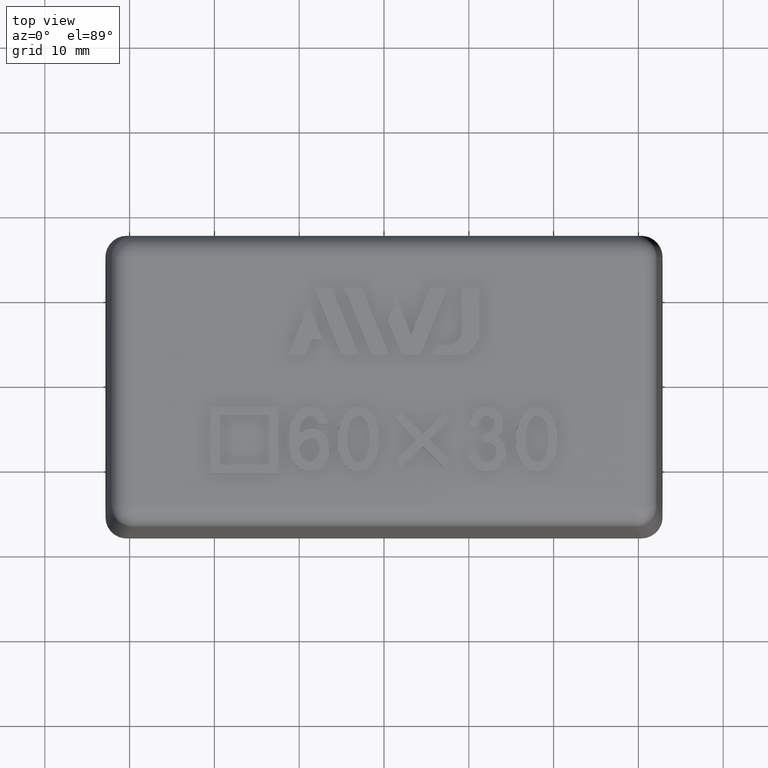
[diagram: clean part render]
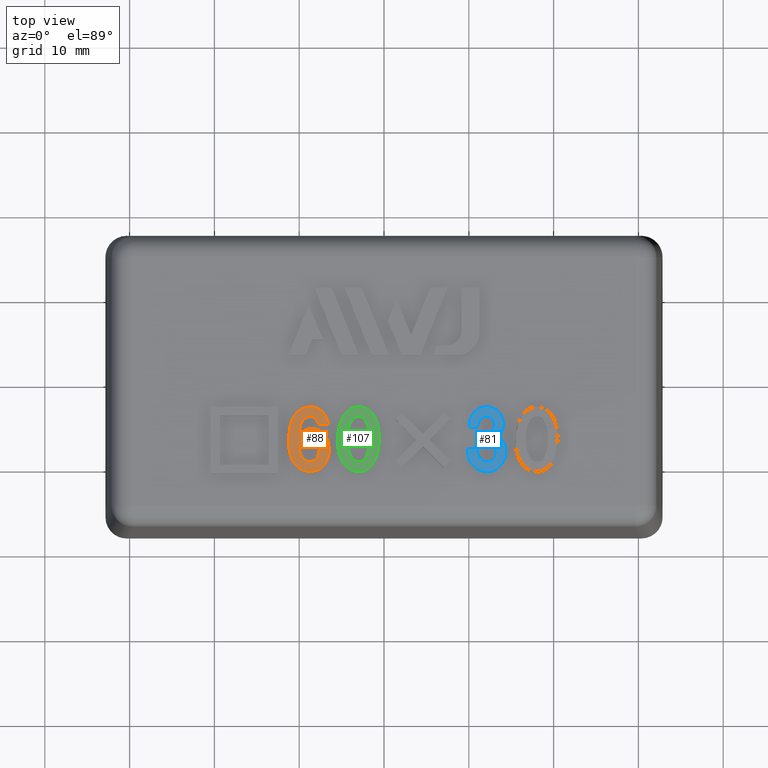
[diagram: same view with three faces highlighted in distinct colors, each labeled with its STEP entity id]
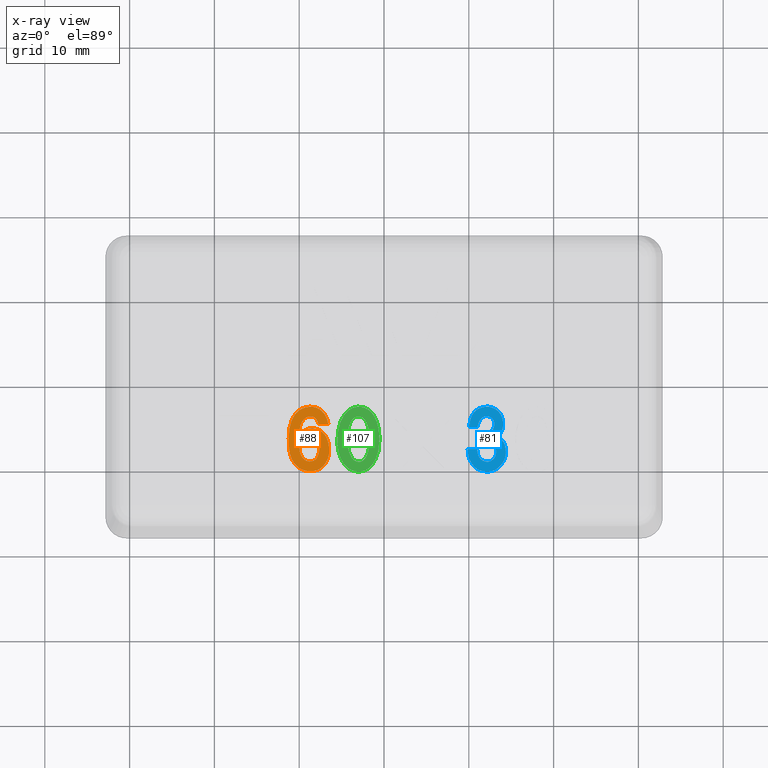
[diagram: x-ray of the same camera — body ghosted, the three highlighted faces saturated]
A machine part, top view with three faces highlighted in distinct colors.
The next image is the same camera in x-ray (body ghosted, the three faces saturated) — at least one of them is partly hidden behind the body in this view.
Their STEP definitions:

[orange] entity #88 — the highlighted planar face has unit normal (0, 0, 1).
#88 = ADVANCED_FACE( '', ( #225, #226 ), #227, .T. );
#225 = FACE_OUTER_BOUND( '', #466, .T. );
#226 = FACE_BOUND( '', #467, .T. );
#227 = PLANE( '', #468 );
#466 = EDGE_LOOP( '', ( #882, #883, #884, #885 ) );
#467 = EDGE_LOOP( '', ( #886, #887 ) );
#468 = AXIS2_PLACEMENT_3D( '', #888, #889, #890 );
#882 = ORIENTED_EDGE( '', *, *, #1717, .F. );
#883 = ORIENTED_EDGE( '', *, *, #1718, .F. );
#884 = ORIENTED_EDGE( '', *, *, #1719, .F. );
#885 = ORIENTED_EDGE( '', *, *, #1720, .F. );
#886 = ORIENTED_EDGE( '', *, *, #1721, .F. );
#887 = ORIENTED_EDGE( '', *, *, #1722, .F. );
#888 = CARTESIAN_POINT( '', ( -6.84205230928590, -4.22571289300513, 43.0000000000000 ) );
#889 = DIRECTION( '', ( 0.000000000000000, 0.000000000000000, 1.00000000000000 ) );
#890 = DIRECTION( '', ( 0.000000000000000, -1.00000000000000, 0.000000000000000 ) );
#1717 = EDGE_CURVE( '', #2052, #2053, #2054, .T. );
#1718 = EDGE_CURVE( '', #2055, #2052, #2056, .T. );
#1719 = EDGE_CURVE( '', #2057, #2055, #2058, .T. );
#1720 = EDGE_CURVE( '', #2053, #2057, #2059, .T. );
#1721 = EDGE_CURVE( '', #2060, #2061, #2062, .T. );
#1722 = EDGE_CURVE( '', #2061, #2060, #2063, .T. );
#2052 = VERTEX_POINT( '', #2805 );
#2053 = VERTEX_POINT( '', #2806 );
#2054 = B_SPLINE_CURVE_WITH_KNOTS( '', 2, ( #2807, #2808, #2809 ), .UNSPECIFIED., .F., .F., ( 3, 3 ), ( 0.000000000000000, 1.00000000000000 ), .UNSPECIFIED. );
#2055 = VERTEX_POINT( '', #2810 );
#2056 = B_SPLINE_CURVE_WITH_KNOTS( '', 2, ( #2811, #2812, #2813, #2814, #2815, #2816, #2817, #2818, #2819, #2820, #2821, #2822, #2823, #2824, #2825, #2826, #2827, #2828, #2829, #2830, #2831, #2832, #2833 ), .UNSPECIFIED., .F., .F., ( 3, 2, 2, 2, 2, 2, 2, 2, 2, 2, 2, 3 ), ( 5.00000000000000, 6.00000000000000, 7.00000000000000, 8.00000000000000, 9.00000000000000, 10.0000000000000, 11.0000000000000, 12.0000000000000, 13.0000000000000, 14.0000000000000, 15.0000000000000, 16.0000000000000 ), .UNSPECIFIED. );
#2057 = VERTEX_POINT( '', #2834 );
#2058 = B_SPLINE_CURVE_WITH_KNOTS( '', 2, ( #2835, #2836, #2837, #2838, #2839, #2840, #2841 ), .UNSPECIFIED., .F., .F., ( 3, 2, 2, 3 ), ( 2.00000000000000, 3.00000000000000, 4.00000000000000, 5.00000000000000 ), .UNSPECIFIED. );
#2059 = B_SPLINE_CURVE_WITH_KNOTS( '', 2, ( #2842, #2843, #2844 ), .UNSPECIFIED., .F., .F., ( 3, 3 ), ( 1.00000000000000, 2.00000000000000 ), .UNSPECIFIED. );
#2060 = VERTEX_POINT( '', #2845 );
#2061 = VERTEX_POINT( '', #2846 );
#2062 = B_SPLINE_CURVE_WITH_KNOTS( '', 2, ( #2847, #2848, #2849, #2850, #2851, #2852, #2853, #2854, #2855, #2856, #2857 ), .UNSPECIFIED., .F., .F., ( 3, 2, 2, 2, 2, 3 ), ( 0.000000000000000, 1.00000000000000, 2.00000000000000, 3.00000000000000, 4.00000000000000, 5.00000000000000 ), .UNSPECIFIED. );
#2063 = B_SPLINE_CURVE_WITH_KNOTS( '', 2, ( #2858, #2859, #2860 ), .UNSPECIFIED., .F., .F., ( 3, 3 ), ( 5.00000000000000, 6.00000000000000 ), .UNSPECIFIED. );
#2805 = CARTESIAN_POINT( '', ( -7.36508423714356, -3.53921520838412, 43.0000000000000 ) );
#2806 = CARTESIAN_POINT( '', ( -6.57073863636365, -5.10909090909092, 43.0000000000000 ) );
#2807 = CARTESIAN_POINT( '', ( -7.36508423714356, -3.53921520838412, 43.0000000000000 ) );
#2808 = CARTESIAN_POINT( '', ( -6.71619318181819, -4.12727272727274, 43.0000000000000 ) );
#2809 = CARTESIAN_POINT( '', ( -6.57073863636365, -5.10909090909092, 43.0000000000000 ) );
#2810 = CARTESIAN_POINT( '', ( -9.98892045454546, -6.27272727272728, 43.0000000000000 ) );
#2811 = CARTESIAN_POINT( '', ( -9.98892045454546, -6.27272727272728, 43.0000000000000 ) );
#2812 = CARTESIAN_POINT( '', ( -8.67982954545455, -5.14545454545456, 43.0000000000000 ) );
#2813 = CARTESIAN_POINT( '', ( -7.42137168214998, -5.96730457863306, 43.0000000000000 ) );
#2814 = CARTESIAN_POINT( '', ( -6.89801136363637, -6.30909090909092, 43.0000000000000 ) );
#2815 = CARTESIAN_POINT( '', ( -6.64156381118882, -7.03569230769232, 43.0000000000000 ) );
#2816 = CARTESIAN_POINT( '', ( -6.46164772727274, -7.54545454545456, 43.0000000000000 ) );
#2817 = CARTESIAN_POINT( '', ( -6.46164772727274, -8.23636363636365, 43.0000000000000 ) );
#2818 = CARTESIAN_POINT( '', ( -6.46164772727274, -9.07272727272728, 43.0000000000000 ) );
#2819 = CARTESIAN_POINT( '', ( -6.93508167810813, -9.76315178436223, 43.0000000000000 ) );
#2820 = CARTESIAN_POINT( '', ( -7.33437500000001, -10.3454545454546, 43.0000000000000 ) );
#2821 = CARTESIAN_POINT( '', ( -7.99052382573617, -10.5587029138188, 43.0000000000000 ) );
#2822 = CARTESIAN_POINT( '', ( -8.78892045454546, -10.8181818181818, 43.0000000000000 ) );
#2823 = CARTESIAN_POINT( '', ( -9.54754114420063, -10.5147335423198, 43.0000000000000 ) );
#2824 = CARTESIAN_POINT( '', ( -10.4252840909091, -10.1636363636364, 43.0000000000000 ) );
#2825 = CARTESIAN_POINT( '', ( -10.8610316120078, -9.25425023264770, 43.0000000000000 ) );
#2826 = CARTESIAN_POINT( '', ( -11.2616477272727, -8.41818181818183, 43.0000000000000 ) );
#2827 = CARTESIAN_POINT( '', ( -11.2434634510920, -6.85433406663636, 43.0000000000000 ) );
#2828 = CARTESIAN_POINT( '', ( -11.2252840909091, -5.29090909090910, 43.0000000000000 ) );
#2829 = CARTESIAN_POINT( '', ( -10.7720912563464, -4.42701025002396, 43.0000000000000 ) );
#2830 = CARTESIAN_POINT( '', ( -10.0616477272727, -3.07272727272728, 43.0000000000000 ) );
#2831 = CARTESIAN_POINT( '', ( -8.64346590909092, -3.07272727272728, 43.0000000000000 ) );
#2832 = CARTESIAN_POINT( '', ( -7.87982954545455, -3.07272727272728, 43.0000000000000 ) );
#2833 = CARTESIAN_POINT( '', ( -7.36508423714356, -3.53921520838412, 43.0000000000000 ) );
#2834 = CARTESIAN_POINT( '', ( -7.73437500000001, -5.10909090909092, 43.0000000000000 ) );
#2835 = CARTESIAN_POINT( '', ( -7.73437500000001, -5.10909090909092, 43.0000000000000 ) );
#2836 = CARTESIAN_POINT( '', ( -7.91619318181819, -4.20000000000001, 43.0000000000000 ) );
#2837 = CARTESIAN_POINT( '', ( -8.67982954545455, -4.20000000000001, 43.0000000000000 ) );
#2838 = CARTESIAN_POINT( '', ( -9.26164772727273, -4.20000000000001, 43.0000000000000 ) );
#2839 = CARTESIAN_POINT( '', ( -9.66081945928796, -4.81871618462362, 43.0000000000000 ) );
#2840 = CARTESIAN_POINT( '', ( -9.98892045454546, -5.32727272727274, 43.0000000000000 ) );
#2841 = CARTESIAN_POINT( '', ( -9.98892045454546, -6.27272727272728, 43.0000000000000 ) );
#2842 = CARTESIAN_POINT( '', ( -6.57073863636365, -5.10909090909092, 43.0000000000000 ) );
#2843 = CARTESIAN_POINT( '', ( -7.15255681818183, -5.10909090909092, 43.0000000000000 ) );
#2844 = CARTESIAN_POINT( '', ( -7.73437500000001, -5.10909090909092, 43.0000000000000 ) );
#2845 = CARTESIAN_POINT( '', ( -9.65476812039313, -8.99508599508600, 43.0000000000000 ) );
#2846 = CARTESIAN_POINT( '', ( -9.98892045454546, -7.83636363636365, 43.0000000000000 ) );
#2847 = CARTESIAN_POINT( '', ( -9.65476812039313, -8.99508599508600, 43.0000000000000 ) );
#2848 = CARTESIAN_POINT( '', ( -9.26164772727273, -9.54545454545456, 43.0000000000000 ) );
#2849 = CARTESIAN_POINT( '', ( -8.75297206362154, -9.53092095506452, 43.0000000000000 ) );
#2850 = CARTESIAN_POINT( '', ( -7.98892045454546, -9.50909090909092, 43.0000000000000 ) );
#2851 = CARTESIAN_POINT( '', ( -7.73528085571014, -8.69744419281787, 43.0000000000000 ) );
#2852 = CARTESIAN_POINT( '', ( -7.44346590909092, -7.76363636363637, 43.0000000000000 ) );
#2853 = CARTESIAN_POINT( '', ( -7.89973095551990, -7.19786770606444, 43.0000000000000 ) );
#2854 = CARTESIAN_POINT( '', ( -8.35255681818182, -6.63636363636365, 43.0000000000000 ) );
#2855 = CARTESIAN_POINT( '', ( -9.07123653846154, -6.94714405594407, 43.0000000000000 ) );
#2856 = CARTESIAN_POINT( '', ( -9.69801136363637, -7.21818181818183, 43.0000000000000 ) );
#2857 = CARTESIAN_POINT( '', ( -9.98892045454546, -7.83636363636365, 43.0000000000000 ) );
#2858 = CARTESIAN_POINT( '', ( -9.98892045454546, -7.83636363636365, 43.0000000000000 ) );
#2859 = CARTESIAN_POINT( '', ( -9.98892045454546, -8.52727272727274, 43.0000000000000 ) );
#2860 = CARTESIAN_POINT( '', ( -9.65476812039313, -8.99508599508600, 43.0000000000000 ) );

[blue] entity #81 — the highlighted planar face has unit normal (0, 0, 1).
#81 = ADVANCED_FACE( '', ( #209 ), #210, .T. );
#209 = FACE_OUTER_BOUND( '', #447, .T. );
#210 = PLANE( '', #448 );
#447 = EDGE_LOOP( '', ( #796, #797, #798, #799, #800, #801, #802, #803 ) );
#448 = AXIS2_PLACEMENT_3D( '', #804, #805, #806 );
#796 = ORIENTED_EDGE( '', *, *, #1700, .F. );
#797 = ORIENTED_EDGE( '', *, *, #1701, .F. );
#798 = ORIENTED_EDGE( '', *, *, #1702, .F. );
#799 = ORIENTED_EDGE( '', *, *, #1703, .F. );
#800 = ORIENTED_EDGE( '', *, *, #1704, .F. );
#801 = ORIENTED_EDGE( '', *, *, #1705, .F. );
#802 = ORIENTED_EDGE( '', *, *, #1706, .F. );
#803 = ORIENTED_EDGE( '', *, *, #1707, .F. );
#804 = CARTESIAN_POINT( '', ( 10.0539551554471, -9.20251106873931, 43.0000000000000 ) );
#805 = DIRECTION( '', ( 0.000000000000000, 0.000000000000000, 1.00000000000000 ) );
#806 = DIRECTION( '', ( 0.000000000000000, -1.00000000000000, 0.000000000000000 ) );
#1700 = EDGE_CURVE( '', #2022, #2023, #2024, .T. );
#1701 = EDGE_CURVE( '', #2025, #2022, #2026, .T. );
#1702 = EDGE_CURVE( '', #2027, #2025, #2028, .T. );
#1703 = EDGE_CURVE( '', #2029, #2027, #2030, .T. );
#1704 = EDGE_CURVE( '', #2031, #2029, #2032, .T. );
#1705 = EDGE_CURVE( '', #2033, #2031, #2034, .T. );
#1706 = EDGE_CURVE( '', #2035, #2033, #2036, .T. );
#1707 = EDGE_CURVE( '', #2023, #2035, #2037, .T. );
#2022 = VERTEX_POINT( '', #2665 );
#2023 = VERTEX_POINT( '', #2666 );
#2024 = B_SPLINE_CURVE_WITH_KNOTS( '', 2, ( #2667, #2668, #2669 ), .UNSPECIFIED., .F., .F., ( 3, 3 ), ( 0.000000000000000, 1.00000000000000 ), .UNSPECIFIED. );
#2025 = VERTEX_POINT( '', #2670 );
#2026 = B_SPLINE_CURVE_WITH_KNOTS( '', 2, ( #2671, #2672, #2673, #2674, #2675, #2676, #2677, #2678, #2679 ), .UNSPECIFIED., .F., .F., ( 3, 2, 2, 2, 3 ), ( 19.0000000000000, 20.0000000000000, 21.0000000000000, 22.0000000000000, 23.0000000000000 ), .UNSPECIFIED. );
#2027 = VERTEX_POINT( '', #2680 );
#2028 = B_SPLINE_CURVE_WITH_KNOTS( '', 2, ( #2681, #2682, #2683, #2684, #2685, #2686, #2687, #2688, #2689, #2690, #2691 ), .UNSPECIFIED., .F., .F., ( 3, 2, 2, 2, 2, 3 ), ( 14.0000000000000, 15.0000000000000, 16.0000000000000, 17.0000000000000, 18.0000000000000, 19.0000000000000 ), .UNSPECIFIED. );
#2029 = VERTEX_POINT( '', #2692 );
#2030 = B_SPLINE_CURVE_WITH_KNOTS( '', 2, ( #2693, #2694, #2695 ), .UNSPECIFIED., .F., .F., ( 3, 3 ), ( 13.0000000000000, 14.0000000000000 ), .UNSPECIFIED. );
#2031 = VERTEX_POINT( '', #2696 );
#2032 = B_SPLINE_CURVE_WITH_KNOTS( '', 2, ( #2697, #2698, #2699, #2700, #2701, #2702, #2703, #2704, #2705, #2706, #2707 ), .UNSPECIFIED., .F., .F., ( 3, 2, 2, 2, 2, 3 ), ( 8.00000000000000, 9.00000000000000, 10.0000000000000, 11.0000000000000, 12.0000000000000, 13.0000000000000 ), .UNSPECIFIED. );
#2033 = VERTEX_POINT( '', #2708 );
#2034 = B_SPLINE_CURVE_WITH_KNOTS( '', 2, ( #2709, #2710, #2711 ), .UNSPECIFIED., .F., .F., ( 3, 3 ), ( 7.00000000000000, 8.00000000000000 ), .UNSPECIFIED. );
#2035 = VERTEX_POINT( '', #2712 );
#2036 = B_SPLINE_CURVE_WITH_KNOTS( '', 2, ( #2713, #2714, #2715, #2716, #2717, #2718, #2719, #2720, #2721, #2722, #2723 ), .UNSPECIFIED., .F., .F., ( 3, 2, 2, 2, 2, 3 ), ( 2.00000000000000, 3.00000000000000, 4.00000000000000, 5.00000000000000, 6.00000000000000, 7.00000000000000 ), .UNSPECIFIED. );
#2037 = B_SPLINE_CURVE_WITH_KNOTS( '', 2, ( #2724, #2725, #2726 ), .UNSPECIFIED., .F., .F., ( 3, 3 ), ( 1.00000000000000, 2.00000000000000 ), .UNSPECIFIED. );
#2665 = CARTESIAN_POINT( '', ( 10.6189456217884, -10.1009533658663, 43.0000000000000 ) );
#2666 = CARTESIAN_POINT( '', ( 9.86562499999999, -8.05454545454547, 43.0000000000000 ) );
#2667 = CARTESIAN_POINT( '', ( 10.6189456217884, -10.1009533658663, 43.0000000000000 ) );
#2668 = CARTESIAN_POINT( '', ( 9.86562499999999, -9.32727272727274, 43.0000000000000 ) );
#2669 = CARTESIAN_POINT( '', ( 9.86562499999999, -8.05454545454547, 43.0000000000000 ) );
#2670 = CARTESIAN_POINT( '', ( 13.2838068181818, -6.63636363636365, 43.0000000000000 ) );
#2671 = CARTESIAN_POINT( '', ( 13.2838068181818, -6.63636363636365, 43.0000000000000 ) );
#2672 = CARTESIAN_POINT( '', ( 14.1928977272727, -6.85454545454547, 43.0000000000000 ) );
#2673 = CARTESIAN_POINT( '', ( 14.3574074533545, -8.08836840015880, 43.0000000000000 ) );
#2674 = CARTESIAN_POINT( '', ( 14.4838068181818, -9.03636363636365, 43.0000000000000 ) );
#2675 = CARTESIAN_POINT( '', ( 13.8716329997823, -9.84093494054584, 43.0000000000000 ) );
#2676 = CARTESIAN_POINT( '', ( 13.2110795454545, -10.7090909090909, 43.0000000000000 ) );
#2677 = CARTESIAN_POINT( '', ( 12.1928977272727, -10.7090909090909, 43.0000000000000 ) );
#2678 = CARTESIAN_POINT( '', ( 11.2110795454545, -10.7090909090909, 43.0000000000000 ) );
#2679 = CARTESIAN_POINT( '', ( 10.6189456217884, -10.1009533658663, 43.0000000000000 ) );
#2680 = CARTESIAN_POINT( '', ( 10.0474431818182, -5.47272727272728, 43.0000000000000 ) );
#2681 = CARTESIAN_POINT( '', ( 10.0474431818182, -5.47272727272728, 43.0000000000000 ) );
#2682 = CARTESIAN_POINT( '', ( 10.0838068181818, -4.27272727272728, 43.0000000000000 ) );
#2683 = CARTESIAN_POINT( '', ( 10.6923341167233, -3.64518349610636, 43.0000000000000 ) );
#2684 = CARTESIAN_POINT( '', ( 11.2474431818182, -3.07272727272728, 43.0000000000000 ) );
#2685 = CARTESIAN_POINT( '', ( 12.1928977272727, -3.07272727272728, 43.0000000000000 ) );
#2686 = CARTESIAN_POINT( '', ( 12.9201704545454, -3.07272727272728, 43.0000000000000 ) );
#2687 = CARTESIAN_POINT( '', ( 13.4568529720280, -3.59090349650351, 43.0000000000000 ) );
#2688 = CARTESIAN_POINT( '', ( 13.9747159090909, -4.09090909090910, 43.0000000000000 ) );
#2689 = CARTESIAN_POINT( '', ( 14.0329742571223, -4.89196137634153, 43.0000000000000 ) );
#2690 = CARTESIAN_POINT( '', ( 14.1201704545454, -6.09090909090910, 43.0000000000000 ) );
#2691 = CARTESIAN_POINT( '', ( 13.2838068181818, -6.63636363636365, 43.0000000000000 ) );
#2692 = CARTESIAN_POINT( '', ( 11.0292613636364, -5.47272727272728, 43.0000000000000 ) );
#2693 = CARTESIAN_POINT( '', ( 11.0292613636364, -5.47272727272728, 43.0000000000000 ) );
#2694 = CARTESIAN_POINT( '', ( 10.5383522727273, -5.47272727272728, 43.0000000000000 ) );
#2695 = CARTESIAN_POINT( '', ( 10.0474431818182, -5.47272727272728, 43.0000000000000 ) );
#2696 = CARTESIAN_POINT( '', ( 11.7201704545454, -6.20000000000001, 43.0000000000000 ) );
#2697 = CARTESIAN_POINT( '', ( 11.7201704545454, -6.20000000000001, 43.0000000000000 ) );
#2698 = CARTESIAN_POINT( '', ( 12.6292613636364, -6.20000000000001, 43.0000000000000 ) );
#2699 = CARTESIAN_POINT( '', ( 12.8766883821338, -5.68747260454108, 43.0000000000000 ) );
#2700 = CARTESIAN_POINT( '', ( 13.1383522727273, -5.14545454545456, 43.0000000000000 ) );
#2701 = CARTESIAN_POINT( '', ( 12.9351958882222, -4.70220425198905, 43.0000000000000 ) );
#2702 = CARTESIAN_POINT( '', ( 12.7383522727273, -4.27272727272728, 43.0000000000000 ) );
#2703 = CARTESIAN_POINT( '', ( 12.3034354653967, -4.19218712322162, 43.0000000000000 ) );
#2704 = CARTESIAN_POINT( '', ( 11.7565340909091, -4.09090909090910, 43.0000000000000 ) );
#2705 = CARTESIAN_POINT( '', ( 11.4292613636364, -4.49090909090910, 43.0000000000000 ) );
#2706 = CARTESIAN_POINT( '', ( 11.1019886363636, -4.89090909090910, 43.0000000000000 ) );
#2707 = CARTESIAN_POINT( '', ( 11.0292613636364, -5.47272727272728, 43.0000000000000 ) );
#2708 = CARTESIAN_POINT( '', ( 11.7201704545454, -7.32727272727274, 43.0000000000000 ) );
#2709 = CARTESIAN_POINT( '', ( 11.7201704545454, -7.32727272727274, 43.0000000000000 ) );
#2710 = CARTESIAN_POINT( '', ( 11.7201704545454, -6.76363636363637, 43.0000000000000 ) );
#2711 = CARTESIAN_POINT( '', ( 11.7201704545454, -6.20000000000001, 43.0000000000000 ) );
#2712 = CARTESIAN_POINT( '', ( 10.9565340909091, -8.05454545454547, 43.0000000000000 ) );
#2713 = CARTESIAN_POINT( '', ( 10.9565340909091, -8.05454545454547, 43.0000000000000 ) );
#2714 = CARTESIAN_POINT( '', ( 11.0656250000000, -9.10909090909092, 43.0000000000000 ) );
#2715 = CARTESIAN_POINT( '', ( 11.6149041514155, -9.39258982595056, 43.0000000000000 ) );
#2716 = CARTESIAN_POINT( '', ( 12.1928977272727, -9.69090909090910, 43.0000000000000 ) );
#2717 = CARTESIAN_POINT( '', ( 12.6274893285648, -9.43337332718044, 43.0000000000000 ) );
#2718 = CARTESIAN_POINT( '', ( 13.1747159090909, -9.10909090909092, 43.0000000000000 ) );
#2719 = CARTESIAN_POINT( '', ( 13.2205896499406, -8.52802352499532, 43.0000000000000 ) );
#2720 = CARTESIAN_POINT( '', ( 13.2838068181818, -7.72727272727274, 43.0000000000000 ) );
#2721 = CARTESIAN_POINT( '', ( 12.7408138111888, -7.46758041958043, 43.0000000000000 ) );
#2722 = CARTESIAN_POINT( '', ( 12.4474431818182, -7.32727272727274, 43.0000000000000 ) );
#2723 = CARTESIAN_POINT( '', ( 11.7201704545454, -7.32727272727274, 43.0000000000000 ) );
#2724 = CARTESIAN_POINT( '', ( 9.86562499999999, -8.05454545454547, 43.0000000000000 ) );
#2725 = CARTESIAN_POINT( '', ( 10.4110795454545, -8.05454545454547, 43.0000000000000 ) );
#2726 = CARTESIAN_POINT( '', ( 10.9565340909091, -8.05454545454547, 43.0000000000000 ) );

[green] entity #107 — the highlighted planar face has unit normal (0, 0, 1).
#107 = ADVANCED_FACE( '', ( #267, #268 ), #269, .T. );
#267 = FACE_OUTER_BOUND( '', #511, .T. );
#268 = FACE_BOUND( '', #512, .T. );
#269 = PLANE( '', #513 );
#511 = EDGE_LOOP( '', ( #1032 ) );
#512 = EDGE_LOOP( '', ( #1033 ) );
#513 = AXIS2_PLACEMENT_3D( '', #1034, #1035, #1036 );
#1032 = ORIENTED_EDGE( '', *, *, #1712, .F. );
#1033 = ORIENTED_EDGE( '', *, *, #1713, .F. );
#1034 = CARTESIAN_POINT( '', ( -1.27342954545455, -4.00116363636365, 43.0000000000000 ) );
#1035 = DIRECTION( '', ( 0.000000000000000, 0.000000000000000, 1.00000000000000 ) );
#1036 = DIRECTION( '', ( 0.000000000000000, -1.00000000000000, 0.000000000000000 ) );
#1712 = EDGE_CURVE( '', #2042, #2042, #2043, .T. );
#1713 = EDGE_CURVE( '', #2044, #2044, #2045, .T. );
#2042 = VERTEX_POINT( '', #2735 );
#2043 = B_SPLINE_CURVE_WITH_KNOTS( '', 2, ( #2736, #2737, #2738, #2739, #2740, #2741, #2742, #2743, #2744, #2745, #2746, #2747, #2748, #2749, #2750, #2751, #2752 ), .UNSPECIFIED., .T., .F., ( 3, 2, 2, 2, 2, 2, 2, 2, 3 ), ( 0.000000000000000, 1.00000000000000, 2.00000000000000, 3.00000000000000, 4.00000000000000, 5.00000000000000, 6.00000000000000, 7.00000000000000, 8.00000000000000 ), .UNSPECIFIED. );
#2044 = VERTEX_POINT( '', #2753 );
#2045 = B_SPLINE_CURVE_WITH_KNOTS( '', 2, ( #2754, #2755, #2756, #2757, #2758, #2759, #2760, #2761, #2762, #2763, #2764, #2765, #2766, #2767, #2768, #2769, #2770 ), .UNSPECIFIED., .T., .F., ( 3, 2, 2, 2, 2, 2, 2, 2, 3 ), ( 0.000000000000000, 1.00000000000000, 2.00000000000000, 3.00000000000000, 4.00000000000000, 5.00000000000000, 6.00000000000000, 7.00000000000000, 8.00000000000000 ), .UNSPECIFIED. );
#2735 = CARTESIAN_POINT( '', ( -4.71889266574038, -9.80206431123463, 43.0000000000000 ) );
#2736 = CARTESIAN_POINT( '', ( -4.71889266574038, -9.80206431123463, 43.0000000000000 ) );
#2737 = CARTESIAN_POINT( '', ( -5.44346590909092, -8.85454545454546, 43.0000000000000 ) );
#2738 = CARTESIAN_POINT( '', ( -5.49401434228270, -7.25384507013908, 43.0000000000000 ) );
#2739 = CARTESIAN_POINT( '', ( -5.55255681818182, -5.40000000000001, 43.0000000000000 ) );
#2740 = CARTESIAN_POINT( '', ( -4.79872637895813, -4.19387129724209, 43.0000000000000 ) );
#2741 = CARTESIAN_POINT( '', ( -4.09801136363637, -3.07272727272728, 43.0000000000000 ) );
#2742 = CARTESIAN_POINT( '', ( -2.97073863636365, -3.07272727272728, 43.0000000000000 ) );
#2743 = CARTESIAN_POINT( '', ( -1.91619318181819, -3.07272727272728, 43.0000000000000 ) );
#2744 = CARTESIAN_POINT( '', ( -1.27342954545455, -4.00116363636365, 43.0000000000000 ) );
#2745 = CARTESIAN_POINT( '', ( -0.607102272727280, -4.96363636363637, 43.0000000000000 ) );
#2746 = CARTESIAN_POINT( '', ( -0.539788721330110, -6.56233320931917, 43.0000000000000 ) );
#2747 = CARTESIAN_POINT( '', ( -0.461647727272738, -8.41818181818183, 43.0000000000000 ) );
#2748 = CARTESIAN_POINT( '', ( -1.18391300298063, -9.58491803278690, 43.0000000000000 ) );
#2749 = CARTESIAN_POINT( '', ( -1.87982954545455, -10.7090909090909, 43.0000000000000 ) );
#2750 = CARTESIAN_POINT( '', ( -2.97073863636365, -10.7090909090909, 43.0000000000000 ) );
#2751 = CARTESIAN_POINT( '', ( -4.02528409090910, -10.7090909090909, 43.0000000000000 ) );
#2752 = CARTESIAN_POINT( '', ( -4.71889266574038, -9.80206431123463, 43.0000000000000 ) );
#2753 = CARTESIAN_POINT( '', ( -4.06164772727274, -8.56363636363637, 43.0000000000000 ) );
#2754 = CARTESIAN_POINT( '', ( -4.06164772727274, -8.56363636363637, 43.0000000000000 ) );
#2755 = CARTESIAN_POINT( '', ( -3.73437500000001, -9.43636363636365, 43.0000000000000 ) );
#2756 = CARTESIAN_POINT( '', ( -3.11567411325789, -9.54242664551944, 43.0000000000000 ) );
#2757 = CARTESIAN_POINT( '', ( -2.46164772727274, -9.65454545454547, 43.0000000000000 ) );
#2758 = CARTESIAN_POINT( '', ( -2.07428831541121, -8.92060130575521, 43.0000000000000 ) );
#2759 = CARTESIAN_POINT( '', ( -1.77073863636365, -8.34545454545455, 43.0000000000000 ) );
#2760 = CARTESIAN_POINT( '', ( -1.70394709234438, -7.32688349916074, 43.0000000000000 ) );
#2761 = CARTESIAN_POINT( '', ( -1.62528409090910, -6.12727272727274, 43.0000000000000 ) );
#2762 = CARTESIAN_POINT( '', ( -1.92140847566740, -5.25631865445420, 43.0000000000000 ) );
#2763 = CARTESIAN_POINT( '', ( -2.24346590909092, -4.30909090909092, 43.0000000000000 ) );
#2764 = CARTESIAN_POINT( '', ( -2.82382954545456, -4.22618181818183, 43.0000000000000 ) );
#2765 = CARTESIAN_POINT( '', ( -3.51619318181819, -4.12727272727274, 43.0000000000000 ) );
#2766 = CARTESIAN_POINT( '', ( -3.87199737762239, -4.74993006993008, 43.0000000000000 ) );
#2767 = CARTESIAN_POINT( '', ( -4.24346590909092, -5.40000000000001, 43.0000000000000 ) );
#2768 = CARTESIAN_POINT( '', ( -4.31044435097526, -6.45491045967835, 43.0000000000000 ) );
#2769 = CARTESIAN_POINT( '', ( -4.38892045454547, -7.69090909090910, 43.0000000000000 ) );
#2770 = CARTESIAN_POINT( '', ( -4.06164772727274, -8.56363636363637, 43.0000000000000 ) );